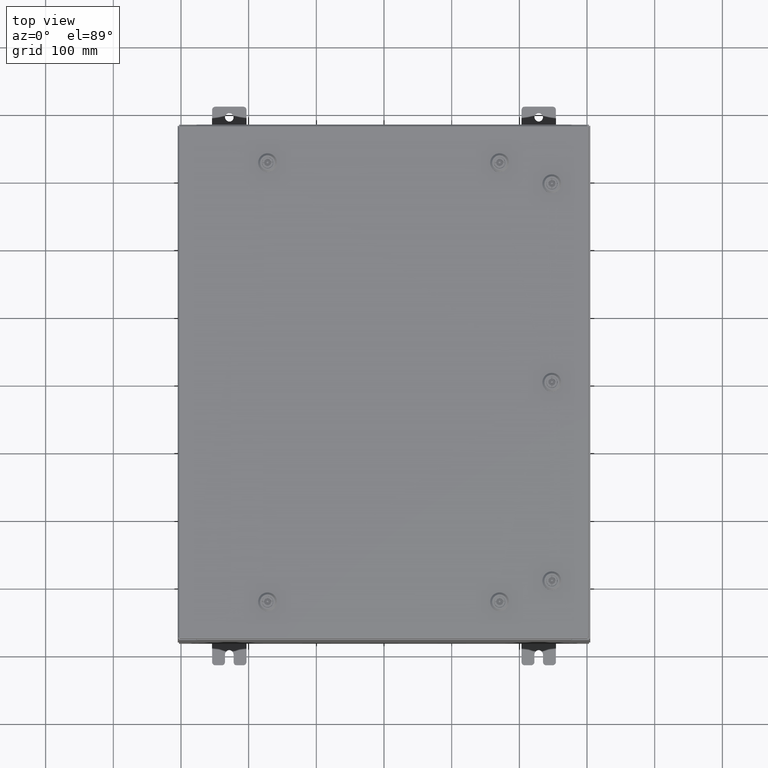
[diagram: clean part render]
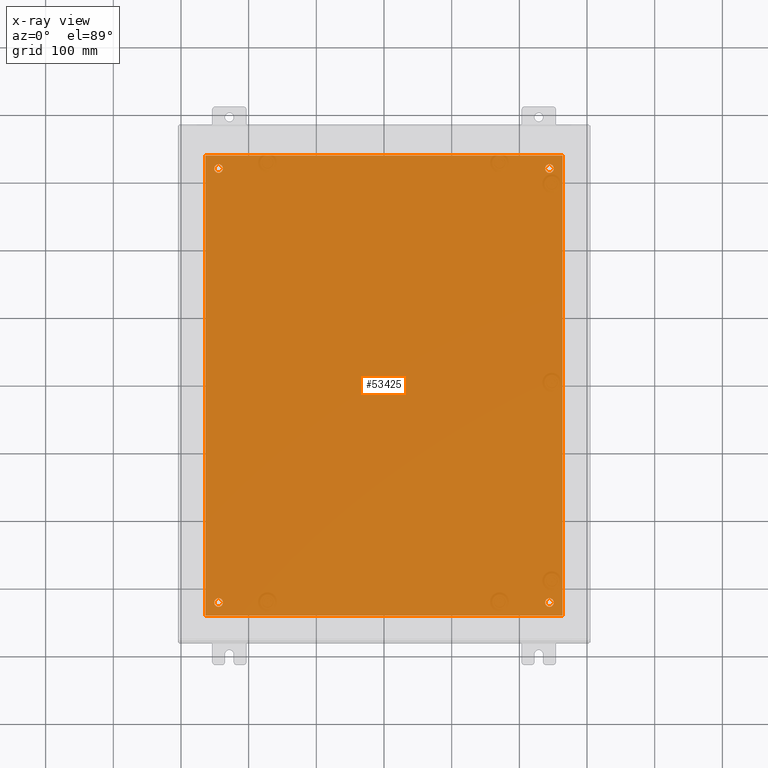
[diagram: x-ray — body ghosted, one internal face saturated and labeled with its STEP entity id]
A machine part, top view, then the same camera in x-ray: the body is ghosted and one INTERNAL B-rep face — a face not visible from any outside direction — is saturated and labeled: STEP entity #53425.
In plain terms, the highlighted planar face has unit normal (0, 0, -1).
Its self-contained STEP definition (entity closure, byte-faithful):
#137 = ORIENTED_EDGE ( 'NONE', *, *, #33400, .T. ) ;
#1205 = AXIS2_PLACEMENT_3D ( 'NONE', #24112, #58665, #29034 ) ;
#1555 = CARTESIAN_POINT ( 'NONE',  ( -9.625000000000007100, 12.62500000000000000, -0.1039999999999999800 ) ) ;
#1618 = DIRECTION ( 'NONE',  ( -0.0000000000000000000, -0.0000000000000000000, 1.000000000000000000 ) ) ;
#2161 = DIRECTION ( 'NONE',  ( -1.000000000000000000, 0.0000000000000000000, 0.0000000000000000000 ) ) ;
#2999 = VECTOR ( 'NONE', #55634, 39.37007874015748100 ) ;
#5403 = CIRCLE ( 'NONE', #61490, 0.2499999999999998100 ) ;
#6282 = DIRECTION ( 'NONE',  ( -0.0000000000000000000, -0.0000000000000000000, 1.000000000000000000 ) ) ;
#6289 = ORIENTED_EDGE ( 'NONE', *, *, #10342, .T. ) ;
#6561 = DIRECTION ( 'NONE',  ( -1.000000000000000000, 0.0000000000000000000, 0.0000000000000000000 ) ) ;
#7242 = EDGE_LOOP ( 'NONE', ( #61329, #48873 ) ) ;
#7454 = CARTESIAN_POINT ( 'NONE',  ( 9.875000000000007100, 12.62500000000000000, -0.1039999999999999800 ) ) ;
#8794 = CARTESIAN_POINT ( 'NONE',  ( -10.38300000000000100, -13.38299999999999900, -0.1040000000000009100 ) ) ;
#10342 = EDGE_CURVE ( 'NONE', #19273, #28248, #20232, .T. ) ;
#10612 = VERTEX_POINT ( 'NONE', #7454 ) ;
#10951 = DIRECTION ( 'NONE',  ( -0.0000000000000000000, -0.0000000000000000000, 1.000000000000000000 ) ) ;
#11822 = CIRCLE ( 'NONE', #1205, 0.2499999999999998100 ) ;
#11884 = CARTESIAN_POINT ( 'NONE',  ( 10.38300000000000100, -13.38299999999999700, -0.1040000000000009100 ) ) ;
#12093 = EDGE_LOOP ( 'NONE', ( #31954, #53688, #63015, #16597 ) ) ;
#13097 = EDGE_CURVE ( 'NONE', #19902, #27359, #64148, .T. ) ;
#13574 = EDGE_CURVE ( 'NONE', #40112, #52247, #14682, .T. ) ;
#13737 = CARTESIAN_POINT ( 'NONE',  ( -9.375000000000007100, 12.62500000000000000, -0.1039999999999999800 ) ) ;
#14682 = LINE ( 'NONE', #11884, #39481 ) ;
#16597 = ORIENTED_EDGE ( 'NONE', *, *, #13574, .F. ) ;
#19273 = VERTEX_POINT ( 'NONE', #57673 ) ;
#19902 = VERTEX_POINT ( 'NONE', #31619 ) ;
#20141 = DIRECTION ( 'NONE',  ( -1.000000000000000000, 0.0000000000000000000, 0.0000000000000000000 ) ) ;
#20232 = CIRCLE ( 'NONE', #28950, 0.2499999999999998100 ) ;
#20270 = ORIENTED_EDGE ( 'NONE', *, *, #21204, .T. ) ;
#20291 = CARTESIAN_POINT ( 'NONE',  ( -9.875000000000007100, -12.62500000000000000, -0.1039999999999999800 ) ) ;
#20787 = DIRECTION ( 'NONE',  ( -0.0000000000000000000, -0.0000000000000000000, 1.000000000000000000 ) ) ;
#21040 = CARTESIAN_POINT ( 'NONE',  ( -10.50000000000000200, -13.38299999999999900, -0.1040000000000009100 ) ) ;
#21204 = EDGE_CURVE ( 'NONE', #45763, #46841, #44233, .T. ) ;
#21480 = PLANE ( 'NONE',  #46127 ) ;
#21626 = CARTESIAN_POINT ( 'NONE',  ( -9.375000000000007100, -12.62500000000000000, -0.1039999999999999800 ) ) ;
#21914 = ORIENTED_EDGE ( 'NONE', *, *, #54179, .T. ) ;
#22120 = CIRCLE ( 'NONE', #37026, 0.2500000000000008900 ) ;
#22222 = VERTEX_POINT ( 'NONE', #20291 ) ;
#24112 = CARTESIAN_POINT ( 'NONE',  ( 9.625000000000007100, 12.62500000000000000, -0.1039999999999999800 ) ) ;
#24196 = AXIS2_PLACEMENT_3D ( 'NONE', #31355, #1618, #36341 ) ;
#25339 = AXIS2_PLACEMENT_3D ( 'NONE', #1555, #36259, #6561 ) ;
#25764 = DIRECTION ( 'NONE',  ( -1.000000000000000000, -0.0000000000000000000, -0.0000000000000000000 ) ) ;
#26495 = DIRECTION ( 'NONE',  ( 0.0000000000000000000, 0.0000000000000000000, -1.000000000000000000 ) ) ;
#27359 = VERTEX_POINT ( 'NONE', #8794 ) ;
#28248 = VERTEX_POINT ( 'NONE', #35505 ) ;
#28375 = CIRCLE ( 'NONE', #33722, 0.2499999999999998100 ) ;
#28950 = AXIS2_PLACEMENT_3D ( 'NONE', #40678, #50917, #20141 ) ;
#29034 = DIRECTION ( 'NONE',  ( -1.000000000000000000, 0.0000000000000000000, 0.0000000000000000000 ) ) ;
#30407 = VERTEX_POINT ( 'NONE', #21626 ) ;
#30424 = EDGE_LOOP ( 'NONE', ( #60618, #20270 ) ) ;
#31355 = CARTESIAN_POINT ( 'NONE',  ( -9.625000000000007100, -12.62500000000000000, -0.1039999999999999800 ) ) ;
#31619 = CARTESIAN_POINT ( 'NONE',  ( -10.38300000000000100, 13.38299999999999700, -0.1040000000000020100 ) ) ;
#31916 = DIRECTION ( 'NONE',  ( -0.0000000000000000000, -0.0000000000000000000, 1.000000000000000000 ) ) ;
#31954 = ORIENTED_EDGE ( 'NONE', *, *, #50072, .F. ) ;
#32231 = CARTESIAN_POINT ( 'NONE',  ( 10.38300000000000100, 13.38299999999999700, -0.1040000000000009100 ) ) ;
#33400 = EDGE_CURVE ( 'NONE', #63464, #10612, #11822, .T. ) ;
#33722 = AXIS2_PLACEMENT_3D ( 'NONE', #50417, #20787, #55391 ) ;
#34651 = EDGE_CURVE ( 'NONE', #22222, #30407, #43066, .T. ) ;
#35147 = EDGE_LOOP ( 'NONE', ( #35821, #137 ) ) ;
#35505 = CARTESIAN_POINT ( 'NONE',  ( 9.875000000000007100, -12.62500000000000000, -0.1039999999999999800 ) ) ;
#35821 = ORIENTED_EDGE ( 'NONE', *, *, #48685, .T. ) ;
#35969 = CARTESIAN_POINT ( 'NONE',  ( 9.625000000000007100, 12.62500000000000000, -0.1039999999999999800 ) ) ;
#36050 = EDGE_CURVE ( 'NONE', #30407, #22222, #22120, .T. ) ;
#36066 = EDGE_CURVE ( 'NONE', #52247, #19902, #36800, .T. ) ;
#36259 = DIRECTION ( 'NONE',  ( -0.0000000000000000000, -0.0000000000000000000, 1.000000000000000000 ) ) ;
#36341 = DIRECTION ( 'NONE',  ( -1.000000000000000000, 0.0000000000000000000, 0.0000000000000000000 ) ) ;
#36468 = CARTESIAN_POINT ( 'NONE',  ( -9.875000000000007100, 12.62500000000000000, -0.1039999999999999800 ) ) ;
#36800 = LINE ( 'NONE', #60344, #60007 ) ;
#37026 = AXIS2_PLACEMENT_3D ( 'NONE', #40663, #10951, #45623 ) ;
#37883 = VECTOR ( 'NONE', #58907, 39.37007874015748100 ) ;
#39481 = VECTOR ( 'NONE', #56512, 39.37007874015748100 ) ;
#40001 = FACE_BOUND ( 'NONE', #61804, .T. ) ;
#40112 = VERTEX_POINT ( 'NONE', #55154 ) ;
#40663 = CARTESIAN_POINT ( 'NONE',  ( -9.625000000000007100, -12.62500000000000000, -0.1039999999999999800 ) ) ;
#40678 = CARTESIAN_POINT ( 'NONE',  ( 9.625000000000007100, -12.62500000000000000, -0.1039999999999999800 ) ) ;
#40974 = DIRECTION ( 'NONE',  ( -1.000000000000000000, 0.0000000000000000000, 0.0000000000000000000 ) ) ;
#43066 = CIRCLE ( 'NONE', #24196, 0.2500000000000008900 ) ;
#44100 = LINE ( 'NONE', #21040, #2999 ) ;
#44233 = CIRCLE ( 'NONE', #25339, 0.2500000000000008900 ) ;
#45623 = DIRECTION ( 'NONE',  ( -1.000000000000000000, 0.0000000000000000000, 0.0000000000000000000 ) ) ;
#45763 = VERTEX_POINT ( 'NONE', #36468 ) ;
#46127 = AXIS2_PLACEMENT_3D ( 'NONE', #56069, #26495, #61044 ) ;
#46841 = VERTEX_POINT ( 'NONE', #13737 ) ;
#48480 = FACE_OUTER_BOUND ( 'NONE', #12093, .T. ) ;
#48565 = AXIS2_PLACEMENT_3D ( 'NONE', #61536, #31916, #2161 ) ;
#48685 = EDGE_CURVE ( 'NONE', #10612, #63464, #5403, .T. ) ;
#48873 = ORIENTED_EDGE ( 'NONE', *, *, #34651, .T. ) ;
#50043 = FACE_BOUND ( 'NONE', #35147, .T. ) ;
#50072 = EDGE_CURVE ( 'NONE', #27359, #40112, #44100, .T. ) ;
#50417 = CARTESIAN_POINT ( 'NONE',  ( 9.625000000000007100, -12.62500000000000000, -0.1039999999999999800 ) ) ;
#50917 = DIRECTION ( 'NONE',  ( -0.0000000000000000000, -0.0000000000000000000, 1.000000000000000000 ) ) ;
#52247 = VERTEX_POINT ( 'NONE', #32231 ) ;
#52681 = EDGE_CURVE ( 'NONE', #46841, #45763, #61728, .T. ) ;
#53425 = ADVANCED_FACE ( 'NONE', ( #63213, #40001, #50043, #61671, #48480 ), #21480, .T. ) ;
#53688 = ORIENTED_EDGE ( 'NONE', *, *, #13097, .F. ) ;
#54179 = EDGE_CURVE ( 'NONE', #28248, #19273, #28375, .T. ) ;
#55154 = CARTESIAN_POINT ( 'NONE',  ( 10.38300000000000100, -13.38299999999999700, -0.1040000000000009100 ) ) ;
#55391 = DIRECTION ( 'NONE',  ( -1.000000000000000000, 0.0000000000000000000, 0.0000000000000000000 ) ) ;
#55634 = DIRECTION ( 'NONE',  ( 1.000000000000000000, -0.0000000000000000000, -0.0000000000000000000 ) ) ;
#56069 = CARTESIAN_POINT ( 'NONE',  ( 0.0000000000000000000, 0.0000000000000000000, -0.1039999999999999800 ) ) ;
#56512 = DIRECTION ( 'NONE',  ( 0.0000000000000000000, 1.000000000000000000, 0.0000000000000000000 ) ) ;
#57673 = CARTESIAN_POINT ( 'NONE',  ( 9.375000000000007100, -12.62500000000000000, -0.1039999999999999800 ) ) ;
#58665 = DIRECTION ( 'NONE',  ( -0.0000000000000000000, -0.0000000000000000000, 1.000000000000000000 ) ) ;
#58907 = DIRECTION ( 'NONE',  ( 0.0000000000000000000, -1.000000000000000000, 0.0000000000000000000 ) ) ;
#58908 = CARTESIAN_POINT ( 'NONE',  ( 9.375000000000007100, 12.62500000000000000, -0.1039999999999999800 ) ) ;
#60007 = VECTOR ( 'NONE', #25764, 39.37007874015748100 ) ;
#60344 = CARTESIAN_POINT ( 'NONE',  ( 10.50000000000000400, 13.38299999999999900, -0.1040000000000009100 ) ) ;
#60618 = ORIENTED_EDGE ( 'NONE', *, *, #52681, .T. ) ;
#61044 = DIRECTION ( 'NONE',  ( -1.000000000000000000, 0.0000000000000000000, -0.0000000000000000000 ) ) ;
#61329 = ORIENTED_EDGE ( 'NONE', *, *, #36050, .T. ) ;
#61490 = AXIS2_PLACEMENT_3D ( 'NONE', #35969, #6282, #40974 ) ;
#61536 = CARTESIAN_POINT ( 'NONE',  ( -9.625000000000007100, 12.62500000000000000, -0.1039999999999999800 ) ) ;
#61671 = FACE_BOUND ( 'NONE', #30424, .T. ) ;
#61728 = CIRCLE ( 'NONE', #48565, 0.2500000000000008900 ) ;
#61804 = EDGE_LOOP ( 'NONE', ( #21914, #6289 ) ) ;
#63015 = ORIENTED_EDGE ( 'NONE', *, *, #36066, .F. ) ;
#63213 = FACE_BOUND ( 'NONE', #7242, .T. ) ;
#63464 = VERTEX_POINT ( 'NONE', #58908 ) ;
#63842 = CARTESIAN_POINT ( 'NONE',  ( -10.38300000000000100, 13.38299999999999700, -0.1040000000000020100 ) ) ;
#64148 = LINE ( 'NONE', #63842, #37883 ) ;